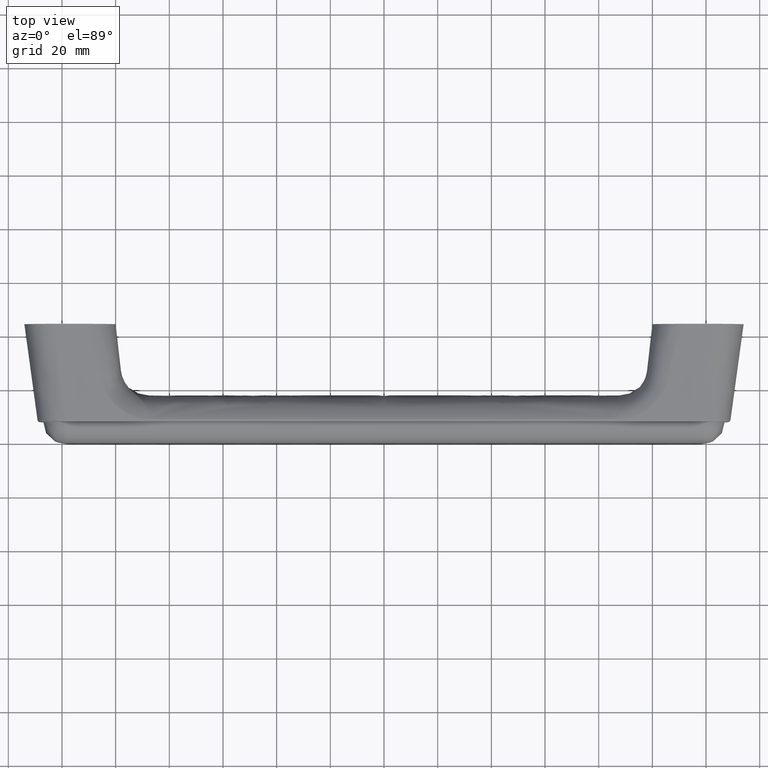
[diagram: clean part render]
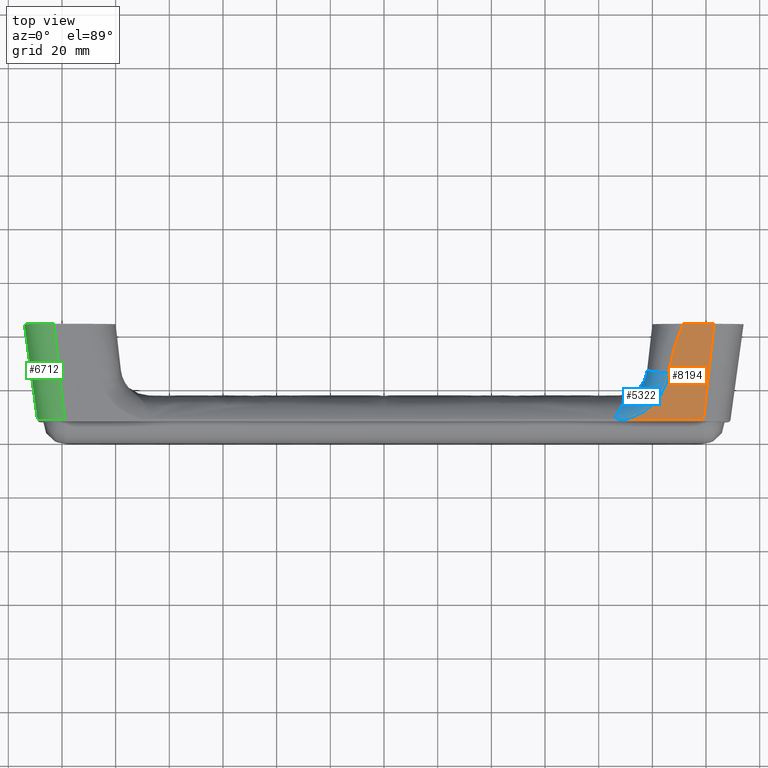
[diagram: same view with three faces highlighted in distinct colors, each labeled with its STEP entity id]
A machine part, top view with three faces highlighted in distinct colors.
Their STEP definitions:

[orange] entity #8194 — the highlighted face is a freeform B-spline surface patch.
#3193=CARTESIAN_POINT('',(90.210512625301405,10.026647000498601,-8.972613018198100));
#3194=VERTEX_POINT('',#3193);
#3295=CARTESIAN_POINT('',(119.051613881012800,10.026647000498500,-8.972613018194110));
#3296=VERTEX_POINT('',#3295);
#3310=CARTESIAN_POINT('',(90.210512625301405,10.026647000498601,-8.972613018198100));
#3311=CARTESIAN_POINT('',(119.051613881012800,10.026647000498500,-8.972613018194110));
#3312=QUASI_UNIFORM_CURVE('',1,(#3310,#3311),.UNSPECIFIED.,.F.,.U.);
#3313=EDGE_CURVE('',#3194,#3296,#3312,.T.);
#4971=CARTESIAN_POINT('',(105.986903452424400,10.494442814030361,-26.047161413613701));
#4972=VERTEX_POINT('',#4971);
#4988=CARTESIAN_POINT('',(111.434945395078000,11.0,-44.500000000000000));
#4989=VERTEX_POINT('',#4988);
#4990=CARTESIAN_POINT('',(111.434945395078000,11.000000000000050,-44.500000000000078));
#4991=CARTESIAN_POINT('',(111.277950166653300,10.988673316509679,-44.086576023509622));
#4992=CARTESIAN_POINT('',(111.120954938228710,10.977346633019311,-43.673152047019158));
#4993=CARTESIAN_POINT('',(110.963959709804000,10.966019949528940,-43.259728070528702));
#4994=CARTESIAN_POINT('',(108.806579152353000,10.810372118778121,-37.578581848351149));
#4995=CARTESIAN_POINT('',(106.649198594902200,10.654724288027300,-31.897435626173650));
#4996=CARTESIAN_POINT('',(105.986903452424400,10.494442814030400,-26.047161413613701));
#4997=B_SPLINE_CURVE_WITH_KNOTS('',3,(#4990,#4991,#4992,#4993,#4994,#4995,#4996),.UNSPECIFIED.,.F.,.U.,(4,3,4),(0.0,0.022656031355942,0.333988305889159),.UNSPECIFIED.);
#4998=EDGE_CURVE('',#4989,#4972,#4997,.T.);
#5282=CARTESIAN_POINT('',(105.986903452424400,10.494442814030361,-26.047161413613701));
#5283=CARTESIAN_POINT('',(105.928357105002900,10.480274063181980,-25.530001971256159));
#5284=CARTESIAN_POINT('',(105.848461808016590,10.466233858815620,-25.017534475822799));
#5285=CARTESIAN_POINT('',(105.646733882065500,10.438405963513381,-24.001816225816611));
#5286=CARTESIAN_POINT('',(105.524899799265500,10.424618281331330,-23.498565790759201));
#5287=CARTESIAN_POINT('',(105.310624370552300,10.404126572476590,-22.750618364929529));
#5288=CARTESIAN_POINT('',(105.233927052952890,10.397326719280169,-22.502423705795049));
#5289=CARTESIAN_POINT('',(105.069967693670310,10.383794777561119,-22.008507798293731));
#5290=CARTESIAN_POINT('',(104.983166716033300,10.377100584493260,-21.764169734123321));
#5291=CARTESIAN_POINT('',(104.708609831106300,10.357228724357469,-21.038846788127088));
#5292=CARTESIAN_POINT('',(104.506722847639400,10.344261435789839,-20.565540722102970));
#5293=CARTESIAN_POINT('',(103.846095240585700,10.306177894370901,-19.175491362496199));
#5294=CARTESIAN_POINT('',(103.332699193346500,10.281875332275900,-18.288447783609008));
#5295=CARTESIAN_POINT('',(102.599876097501290,10.252853067488960,-17.229135044343760));
#5296=CARTESIAN_POINT('',(102.448732617173310,10.247116783008750,-17.019760646082538));
#5297=CARTESIAN_POINT('',(102.215077425552810,10.238615676141769,-16.709470223603180));
#5298=CARTESIAN_POINT('',(102.136035390815910,10.235799198428740,-16.606668779843869));
#5299=CARTESIAN_POINT('',(101.975621693729490,10.230200925680601,-16.402331810157659));
#5300=CARTESIAN_POINT('',(101.894196968923200,10.227417479218641,-16.300736007147162));
#5301=CARTESIAN_POINT('',(101.483106607521800,10.213650100284481,-15.798226640689791));
#5302=CARTESIAN_POINT('',(101.140222882165400,10.203067231109550,-15.411951888623181));
#5303=CARTESIAN_POINT('',(100.071300262433700,10.172557494464540,-14.298346422717779));
#5304=CARTESIAN_POINT('',(99.305118865857054,10.153865531246611,-13.616089717254200));
#5305=CARTESIAN_POINT('',(98.079195949816196,10.128185596504039,-12.678772033192940));
#5306=CARTESIAN_POINT('',(97.657740363809410,10.120019834372650,-12.380721694423981));
#5307=CARTESIAN_POINT('',(97.006581194218441,10.108354943637201,-11.954953152619479));
#5308=CARTESIAN_POINT('',(96.786150748308472,10.104561038990729,-11.816475623278590));
#5309=CARTESIAN_POINT('',(96.342647942638621,10.097224446631490,-11.548689983323079));
#5310=CARTESIAN_POINT('',(96.119155693643592,10.093673908450681,-11.419095330603950));
#5311=CARTESIAN_POINT('',(94.993363161676299,10.076484780086540,-10.791692101163630));
#5312=CARTESIAN_POINT('',(94.066012913262284,10.064540672659950,-10.355732149415260));
#5313=CARTESIAN_POINT('',(92.167759265241571,10.043598572198400,-9.591345428780199));
#5314=CARTESIAN_POINT('',(91.196766664866090,10.034606613070549,-9.263138897518349));
#5315=CARTESIAN_POINT('',(90.210512625301334,10.026647000498601,-8.972613018198265));
#5316=B_SPLINE_CURVE_WITH_KNOTS('',3,(#5282,#5283,#5284,#5285,#5286,#5287,#5288,#5289,#5290,#5291,#5292,#5293,#5294,#5295,#5296,#5297,#5298,#5299,#5300,#5301,#5302,#5303,#5304,#5305,#5306,#5307,#5308,#5309,#5310,#5311,#5312,#5313,#5314,#5315),.UNSPECIFIED.,.F.,.U.,(4,2,2,2,2,2,2,2,2,2,2,2,2,2,2,2,4),(0.0,0.062500000000001,0.125000000000002,0.156250000000002,0.187500000000003,0.250000000000004,0.375000000000006,0.406250000000007,0.421875000000007,0.437500000000008,0.500000000000007,0.625000000000006,0.687500000000005,0.718750000000004,0.750000000000003,0.875000000000001,1.0),.UNSPECIFIED.);
#5317=EDGE_CURVE('',#4972,#3194,#5316,.T.);
#6384=CARTESIAN_POINT('',(122.977883841506200,11.0,-44.500000000000000));
#6385=VERTEX_POINT('',#6384);
#6386=CARTESIAN_POINT('',(119.051613881012800,10.026647000498510,-8.972613018194110));
#6387=CARTESIAN_POINT('',(120.360370534510690,10.351098000332341,-20.815075345462770));
#6388=CARTESIAN_POINT('',(121.669127188008400,10.675549000166180,-32.657537672731387));
#6389=CARTESIAN_POINT('',(122.977883841506100,11.000000000000011,-44.500000000000043));
#6390=B_SPLINE_CURVE_WITH_KNOTS('',3,(#6386,#6387,#6388,#6389),.UNSPECIFIED.,.F.,.U.,(4,4),(0.407825264908886,0.594879132900888),.UNSPECIFIED.);
#6391=EDGE_CURVE('',#3296,#6385,#6390,.T.);
#8178=CARTESIAN_POINT('',(88.573780152856472,11.048618980438549,-46.274592910882241));
#8179=CARTESIAN_POINT('',(88.573780152856472,9.978027993952573,-7.198019154393099));
#8180=CARTESIAN_POINT('',(124.614612505430500,11.048618980438549,-46.274592910882241));
#8181=CARTESIAN_POINT('',(124.614612505430500,9.978027993952573,-7.198019154393099));
#8182=B_SPLINE_SURFACE_WITH_KNOTS('',1,1,((#8178,#8180),(#8179,#8181)),.UNSPECIFIED.,.F.,.F.,.U.,(2,2),(2,2),(0.0,39.091236634400303),(0.0,36.040832352574000),.UNSPECIFIED.);
#8183=ORIENTED_EDGE('',*,*,#5317,.T.);
#8184=ORIENTED_EDGE('',*,*,#3313,.T.);
#8185=ORIENTED_EDGE('',*,*,#6391,.T.);
#8186=CARTESIAN_POINT('',(122.977883841506200,11.0,-44.500000000000000));
#8187=CARTESIAN_POINT('',(111.434945395078000,11.0,-44.500000000000000));
#8188=QUASI_UNIFORM_CURVE('',1,(#8186,#8187),.UNSPECIFIED.,.F.,.U.);
#8189=EDGE_CURVE('',#6385,#4989,#8188,.T.);
#8190=ORIENTED_EDGE('',*,*,#8189,.T.);
#8191=ORIENTED_EDGE('',*,*,#4998,.T.);
#8192=EDGE_LOOP('',(#8183,#8184,#8185,#8190,#8191));
#8193=FACE_OUTER_BOUND('',#8192,.T.);
#8194=ADVANCED_FACE('',(#8193),#8182,.T.);

[blue] entity #5322 — the highlighted face is a freeform B-spline surface patch.
#2864=CARTESIAN_POINT('',(85.875753955372403,9.941905924826591,-9.118448156514230));
#2865=VERTEX_POINT('',#2864);
#3193=CARTESIAN_POINT('',(90.210512625301405,10.026647000498601,-8.972613018198100));
#3194=VERTEX_POINT('',#3193);
#3208=CARTESIAN_POINT('',(85.875753955372403,9.941905924826591,-9.118448156514230));
#3209=CARTESIAN_POINT('',(86.236928646252224,9.953832834476655,-9.107801704559666));
#3210=CARTESIAN_POINT('',(86.598091130910888,9.965725496286780,-9.096734504934865));
#3211=CARTESIAN_POINT('',(87.320482249885615,9.986524956759126,-9.073961618532803));
#3212=CARTESIAN_POINT('',(87.681710662415810,9.995662819312546,-9.062245418543231));
#3213=CARTESIAN_POINT('',(88.765450280648423,10.018353851597750,-9.025977897111854));
#3214=CARTESIAN_POINT('',(89.487959472655845,10.027404845314880,-9.000274355934778));
#3215=CARTESIAN_POINT('',(90.210512625301405,10.026647000498601,-8.972613018198100));
#3216=B_SPLINE_CURVE_WITH_KNOTS('',3,(#3208,#3209,#3210,#3211,#3212,#3213,#3214,#3215),.UNSPECIFIED.,.F.,.U.,(4,2,2,4),(0.0,0.250000000000002,0.500000000000005,1.0),.UNSPECIFIED.);
#3217=EDGE_CURVE('',#2865,#3194,#3216,.T.);
#4969=CARTESIAN_POINT('',(98.037679698098700,2.497443563901395,-27.166169321356900));
#4970=VERTEX_POINT('',#4969);
#4971=CARTESIAN_POINT('',(105.986903452424400,10.494442814030361,-26.047161413613701));
#4972=VERTEX_POINT('',#4971);
#4973=CARTESIAN_POINT('',(98.037679698098700,2.497443563901395,-27.166169321356879));
#4974=CARTESIAN_POINT('',(98.027513684252156,5.817143082755584,-27.076369525410243));
#4975=CARTESIAN_POINT('',(100.357275046581710,8.160906504610543,-26.748410284587170));
#4976=CARTESIAN_POINT('',(102.687036408911310,10.504669926465501,-26.420451043764110));
#4977=CARTESIAN_POINT('',(105.986903452424400,10.494442814030361,-26.047161413613701));
#4985=(BOUNDED_CURVE()B_SPLINE_CURVE(2,(#4973,#4974,#4975,#4976,#4977),.UNSPECIFIED.,.F.,.U.)B_SPLINE_CURVE_WITH_KNOTS((3,2,3),(0.0,0.500000000000000,1.0),.UNSPECIFIED.)CURVE()GEOMETRIC_REPRESENTATION_ITEM()RATIONAL_B_SPLINE_CURVE((1.0,0.923584521557066,1.0,0.923584521557066,1.0))REPRESENTATION_ITEM(''));
#4986=EDGE_CURVE('',#4970,#4972,#4985,.T.);
#5054=CARTESIAN_POINT('',(85.940035474785404,9.997631779522264,-7.913557378038102));
#5055=CARTESIAN_POINT('',(86.239422389510537,9.999123578378276,-7.968008040102816));
#5056=CARTESIAN_POINT('',(86.536662232546234,10.000878596975213,-8.032066223409787));
#5057=CARTESIAN_POINT('',(87.130693754809784,10.004435872202743,-8.161906778351938));
#5058=CARTESIAN_POINT('',(87.427193618377473,10.006277870440837,-8.229139718772725));
#5059=CARTESIAN_POINT('',(88.315396699747879,10.011969641472600,-8.436889376052363));
#5060=CARTESIAN_POINT('',(88.906160181052940,10.015993282724798,-8.583752292090832));
#5061=CARTESIAN_POINT('',(90.078039949171455,10.024668160587376,-8.900385356356379));
#5062=CARTESIAN_POINT('',(90.659473075783467,10.029325658901071,-9.070384056768686));
#5063=CARTESIAN_POINT('',(91.810283807127504,10.039489131648310,-9.441350838146873));
#5064=CARTESIAN_POINT('',(92.379647559463294,10.044995012724520,-9.642315511569837));
#5065=CARTESIAN_POINT('',(93.503684116176260,10.057028323020406,-10.081531368277107));
#5066=CARTESIAN_POINT('',(94.058360809893259,10.063554712149791,-10.319744588261994));
#5067=CARTESIAN_POINT('',(95.150847605366366,10.077769269889478,-10.838575982270040));
#5068=CARTESIAN_POINT('',(95.688670259191070,10.085456245220005,-11.119150601578372));
#5069=CARTESIAN_POINT('',(96.745483541393114,10.102118869579993,-11.727336433513807));
#5070=CARTESIAN_POINT('',(97.266146815466243,10.111132093205658,-12.056319119000985));
#5071=CARTESIAN_POINT('',(98.267890607526212,10.130198273992955,-12.752234766707520));
#5072=CARTESIAN_POINT('',(98.751114189345401,10.140278607118269,-13.120166951672340));
#5073=CARTESIAN_POINT('',(100.146798083417180,10.172187873614227,-14.284855260731788));
#5074=CARTESIAN_POINT('',(101.005774618181770,10.195672455377167,-15.142042555398318));
#5075=CARTESIAN_POINT('',(102.178297127934040,10.234475004430898,-16.558335695521109));
#5076=CARTESIAN_POINT('',(102.546994659274630,10.247929643108298,-17.049430041803280));
#5077=CARTESIAN_POINT('',(103.230190609248170,10.275487316001101,-18.055285173172454));
#5078=CARTESIAN_POINT('',(103.546392686520630,10.289645355882188,-18.572053665195462));
#5079=CARTESIAN_POINT('',(104.128265035161310,10.318715243990882,-19.633104655826603));
#5080=CARTESIAN_POINT('',(104.393941484886210,10.333627056624778,-20.177385855264195));
#5081=CARTESIAN_POINT('',(104.873771958821790,10.364218840705053,-21.293986052767778));
#5082=CARTESIAN_POINT('',(105.088428901313960,10.379941991613915,-21.867881101324869));
#5083=CARTESIAN_POINT('',(105.648192661932460,10.428029729254176,-23.623083648705531));
#5084=CARTESIAN_POINT('',(105.904637178659090,10.460794623731221,-24.819002381269119));
#5085=CARTESIAN_POINT('',(106.048639154538650,10.495599515980317,-26.089381037758262));
#5086=CARTESIAN_POINT('',(106.054145906111200,10.496930483100439,-26.137961341061594));
#5087=CARTESIAN_POINT('',(106.059652647895120,10.498261447854629,-26.186541558008120));
#5088=CARTESIAN_POINT('',(85.939575465898415,9.997698909381104,-7.916007618058376));
#5089=CARTESIAN_POINT('',(86.238742395381351,9.999213059086980,-7.971274086206098));
#5090=CARTESIAN_POINT('',(86.535760250797551,10.000992047176247,-8.036207156039449));
#5091=CARTESIAN_POINT('',(87.129347046291883,10.004596416141165,-8.167766632516674));
#5092=CARTESIAN_POINT('',(87.425620893157486,10.006461664833806,-8.235848214588296));
#5093=CARTESIAN_POINT('',(88.313123792633135,10.012220725202548,-8.446053932839741));
#5094=CARTESIAN_POINT('',(88.903388462660615,10.016286294170756,-8.594447210621095));
#5095=CARTESIAN_POINT('',(90.074173716353343,10.025035579010655,-8.913796129749894));
#5096=CARTESIAN_POINT('',(90.655017151738676,10.029725551610541,-9.084980141691444));
#5097=CARTESIAN_POINT('',(91.804556410555648,10.039943718128866,-9.457943245854819));
#5098=CARTESIAN_POINT('',(92.373242666253347,10.045472045860645,-9.659727222264042));
#5099=CARTESIAN_POINT('',(93.495857368568352,10.057540894829380,-10.100240240621023));
#5100=CARTESIAN_POINT('',(94.049790890199830,10.064080685202777,-10.338942606047206));
#5101=CARTESIAN_POINT('',(95.140753677409009,10.078314186523826,-10.858465440823345));
#5102=CARTESIAN_POINT('',(95.677794122752644,10.086006969282277,-11.139252031265482));
#5103=CARTESIAN_POINT('',(96.733029931800985,10.102674710956563,-11.747624645186509));
#5104=CARTESIAN_POINT('',(97.252892305099238,10.111687400865453,-12.076587850009844));
#5105=CARTESIAN_POINT('',(98.253070019345529,10.130747214477459,-12.772271095802244));
#5106=CARTESIAN_POINT('',(98.735521789389239,10.140821860447604,-13.139995699588837));
#5107=CARTESIAN_POINT('',(100.128972468580490,10.172707816731085,-14.303833185832749));
#5108=CARTESIAN_POINT('',(100.986515219752360,10.196168772933627,-15.160158147483648));
#5109=CARTESIAN_POINT('',(102.157057400461600,10.234926186734407,-16.574803850758162));
#5110=CARTESIAN_POINT('',(102.525129446716520,10.248364344081546,-17.065296628443402));
#5111=CARTESIAN_POINT('',(103.207160373432970,10.275886933930995,-18.069871228639776));
#5112=CARTESIAN_POINT('',(103.522818238461300,10.290026304926815,-18.585958306302874));
#5113=CARTESIAN_POINT('',(104.103683159854140,10.319056898172089,-19.645575034318536));
#5114=CARTESIAN_POINT('',(104.368895047958960,10.333948076613209,-20.189103085666684));
#5115=CARTESIAN_POINT('',(104.847879466146950,10.364496802444160,-21.304131656958610));
#5116=CARTESIAN_POINT('',(105.062153016635920,10.380197457438424,-21.877205604575927));
#5117=CARTESIAN_POINT('',(105.620905904701090,10.428215708904300,-23.629871906412355));
#5118=CARTESIAN_POINT('',(105.876860983597060,10.460932007585939,-24.824016892320412));
#5119=CARTESIAN_POINT('',(106.020554278427710,10.495684533948602,-26.092484193819075));
#5120=CARTESIAN_POINT('',(106.026049291990590,10.497013514566184,-26.140991989774498));
#5121=CARTESIAN_POINT('',(106.031544300662290,10.498342494000834,-26.189499742552506));
#5122=CARTESIAN_POINT('',(85.847092854067981,10.011195050116742,-8.408616789572806));
#5123=CARTESIAN_POINT('',(86.101851878847214,10.017226538775642,-8.628766142258391));
#5124=CARTESIAN_POINT('',(86.353789360478714,10.023880131245370,-8.871622283368129));
#5125=CARTESIAN_POINT('',(86.856066847429574,10.037174720084106,-9.356874810089723));
#5126=CARTESIAN_POINT('',(87.105299415807082,10.043895598450032,-9.602186887770523));
#5127=CARTESIAN_POINT('',(87.844123061321866,10.064030344784372,-10.337105180560389));
#5128=CARTESIAN_POINT('',(88.324922692582476,10.077438643629339,-10.826508122951060));
#5129=CARTESIAN_POINT('',(89.246451886265021,10.103696193630379,-11.784908765379612));
#5130=CARTESIAN_POINT('',(89.687460867859841,10.116557979640193,-12.254363987785286));
#5131=CARTESIAN_POINT('',(90.524783327392171,10.141519981355644,-13.165477114537532));
#5132=CARTESIAN_POINT('',(90.921192449867036,10.153619995537003,-13.607127663248841));
#5133=CARTESIAN_POINT('',(91.671347905619697,10.177027578540180,-14.461504502933554));
#5134=CARTESIAN_POINT('',(92.025217077881479,10.188337540245167,-14.874318134258793));
#5135=CARTESIAN_POINT('',(92.695891942576949,10.210299062345111,-15.675913747277530));
#5136=CARTESIAN_POINT('',(93.012773551827735,10.220952955218634,-16.064780864477356));
#5137=CARTESIAN_POINT('',(93.615460260464616,10.241821052815075,-16.826466480477798));
#5138=CARTESIAN_POINT('',(93.902124889868716,10.252070316594805,-17.200564634692547));
#5139=CARTESIAN_POINT('',(94.439412180257193,10.272001472166195,-17.928051864248047));
#5140=CARTESIAN_POINT('',(94.691309414761406,10.281725880566306,-18.282992795809619));
#5141=CARTESIAN_POINT('',(95.404096575238498,10.310524476704954,-19.334141628883870));
#5142=CARTESIAN_POINT('',(95.822839143730391,10.329237471925897,-20.017166002464492));
#5143=CARTESIAN_POINT('',(96.379054094452513,10.357664712673277,-21.054760362782112));
#5144=CARTESIAN_POINT('',(96.550959732427557,10.367136452158354,-21.400478878422739));
#5145=CARTESIAN_POINT('',(96.864845938028793,10.385938024410317,-22.086736313677704));
#5146=CARTESIAN_POINT('',(97.007623120865318,10.395307978940698,-22.428739678187032));
#5147=CARTESIAN_POINT('',(97.265975075338559,10.414091614921972,-23.114342439812848));
#5148=CARTESIAN_POINT('',(97.381544390958993,10.423504895957826,-23.457927221772813));
#5149=CARTESIAN_POINT('',(97.585500220844423,10.442460078916765,-24.149791448447075));
#5150=CARTESIAN_POINT('',(97.674081337081361,10.452027572630955,-24.499004993611383));
#5151=CARTESIAN_POINT('',(97.896264229910400,10.480864916861334,-25.551568132037218));
#5152=CARTESIAN_POINT('',(97.984749233343052,10.499967186149270,-26.248801010564577));
#5153=CARTESIAN_POINT('',(98.014246161744694,10.519921067764159,-26.977117740320175));
#5154=CARTESIAN_POINT('',(98.015378036248109,10.520686750534118,-27.005065163373359));
#5155=CARTESIAN_POINT('',(98.016510196185052,10.521452626392225,-27.033019634144591));
#5156=CARTESIAN_POINT('',(85.755283769570951,9.962292212067499,-8.899345281910190));
#5157=CARTESIAN_POINT('',(85.965741647338589,9.930467295131413,-9.282744773917088));
#5158=CARTESIAN_POINT('',(86.175117722007769,9.873977051845369,-9.696241266647354));
#5159=CARTESIAN_POINT('',(86.594208105868447,9.713523327233345,-10.505760088079356));
#5160=CARTESIAN_POINT('',(86.802712998053678,9.610009849455729,-10.905128537886000));
#5161=CARTESIAN_POINT('',(87.422274003150775,9.242847178868452,-12.060162406613170));
#5162=CARTESIAN_POINT('',(87.827443927876331,8.922284152432475,-12.771803497116061));
#5163=CARTESIAN_POINT('',(88.612500812023640,8.224225469323212,-14.031891486860534));
#5164=CARTESIAN_POINT('',(88.992780486981388,7.848070470763177,-14.582310369568193));
#5165=CARTESIAN_POINT('',(89.729158767575754,7.115821982817997,-15.546394369543954));
#5166=CARTESIAN_POINT('',(90.085389437008260,6.759723390645947,-15.961307010881027));
#5167=CARTESIAN_POINT('',(90.777152541730459,6.102208435490185,-16.702153172796908));
#5168=CARTESIAN_POINT('',(91.112745930480841,5.800193009956347,-17.028625542936332));
#5169=CARTESIAN_POINT('',(91.766438772267577,5.255551423009669,-17.634915397179654));
#5170=CARTESIAN_POINT('',(92.084546102810123,5.012471075772772,-17.914762894749874));
#5171=CARTESIAN_POINT('',(92.705197874482977,4.578076605131225,-18.457485013665263));
#5172=CARTESIAN_POINT('',(93.008685288520354,4.386129750297196,-18.721147512595234));
#5173=CARTESIAN_POINT('',(93.590020148368822,4.049499917775796,-19.241209949089235));
#5174=CARTESIAN_POINT('',(93.869118869024348,3.903734491079958,-19.498554985167200));
#5175=CARTESIAN_POINT('',(94.673074345240394,3.516919181723188,-20.280178774052629));
#5176=CARTESIAN_POINT('',(95.164933437618785,3.325135517919416,-20.814784105433461));
#5177=CARTESIAN_POINT('',(95.835102141496606,3.092375352632948,-21.672845320002548));
#5178=CARTESIAN_POINT('',(96.045571890997309,3.024806495783184,-21.966181909725066));
#5179=CARTESIAN_POINT('',(96.435308013489532,2.905971287955342,-22.561590849497797));
#5180=CARTESIAN_POINT('',(96.615543903883051,2.854390260199032,-22.864858640746942));
#5181=CARTESIAN_POINT('',(96.947084338789196,2.762841648880675,-23.484039935236247));
#5182=CARTESIAN_POINT('',(97.098389725541097,2.722891619337488,-23.799939635865424));
#5183=CARTESIAN_POINT('',(97.371616469187444,2.651842839749708,-24.445632946143103));
#5184=CARTESIAN_POINT('',(97.493822481842088,2.620682118774742,-24.776325051623630));
#5185=CARTESIAN_POINT('',(97.812540013270791,2.538042257393449,-25.785227842829674));
#5186=CARTESIAN_POINT('',(97.958606973903684,2.497893823591696,-26.469436911469529));
#5187=CARTESIAN_POINT('',(98.040922452041883,2.465201832953953,-27.194744330359001));
#5188=CARTESIAN_POINT('',(98.044070296586824,2.463951651253981,-27.222480973012466));
#5189=CARTESIAN_POINT('',(98.047218138066071,2.462701470771571,-27.250217588653015));
#5190=CARTESIAN_POINT('',(85.754784287260776,9.962026158847841,-8.902015063472412));
#5191=CARTESIAN_POINT('',(85.965002126600425,9.929995910583799,-9.286298002466447));
#5192=CARTESIAN_POINT('',(86.174149046404125,9.873164346162611,-9.700711972229321));
#5193=CARTESIAN_POINT('',(86.592796683214118,9.711778841235843,-10.511952597441168));
#5194=CARTESIAN_POINT('',(86.801088050635727,9.607679799307512,-10.912125585823190));
#5195=CARTESIAN_POINT('',(87.420037944645571,9.238494404891810,-12.069295665750872));
#5196=CARTESIAN_POINT('',(87.824836817415544,8.916230395827068,-12.781998102955011));
#5197=CARTESIAN_POINT('',(88.609262169922900,8.214623887652062,-14.043370563302075));
#5198=CARTESIAN_POINT('',(88.989281479658686,7.836644418403544,-14.594035907903587));
#5199=CARTESIAN_POINT('',(89.725264550598823,7.101012580107164,-15.558047866511455));
#5200=CARTESIAN_POINT('',(90.081357473210915,6.743351030134663,-15.972663713065797));
#5201=CARTESIAN_POINT('',(90.772957462327057,6.083091595312025,-16.712665080445667));
#5202=CARTESIAN_POINT('',(91.108521869202590,5.779879171599209,-17.038598380469242));
#5203=CARTESIAN_POINT('',(91.762242218015245,5.233180347264019,-17.643760443887551));
#5204=CARTESIAN_POINT('',(92.080403397464892,4.989225473905089,-17.923019416848526));
#5205=CARTESIAN_POINT('',(92.701221436704898,4.553334807893362,-18.464610040264201));
#5206=CARTESIAN_POINT('',(93.004820462553909,4.360754963479956,-18.727725224375412));
#5207=CARTESIAN_POINT('',(93.586410444507806,4.023055841256000,-19.246790542774054));
#5208=CARTESIAN_POINT('',(93.865652389279930,3.876843914344097,-19.503679979281173));
#5209=CARTESIAN_POINT('',(94.670058457799968,3.488891649805039,-20.284081721770466));
#5210=CARTESIAN_POINT('',(95.162250106208688,3.296568617528711,-20.818037267230213));
#5211=CARTESIAN_POINT('',(95.832915617523199,3.063171064876639,-21.675329836455234));
#5212=CARTESIAN_POINT('',(96.043549234274693,2.995421117210697,-21.968445959125354));
#5213=CARTESIAN_POINT('',(96.433602437662657,2.876270417036292,-22.563476365004835));
#5214=CARTESIAN_POINT('',(96.613992568183477,2.824553190654383,-22.866584228042917));
#5215=CARTESIAN_POINT('',(96.945830729171433,2.732763382420606,-23.485493274210452));
#5216=CARTESIAN_POINT('',(97.097279855225793,2.692707825355948,-23.801280208606251));
#5217=CARTESIAN_POINT('',(97.370782622393548,2.621470353964790,-24.446786313252204));
#5218=CARTESIAN_POINT('',(97.493121453343207,2.590225937631264,-24.777403552115192));
#5219=CARTESIAN_POINT('',(97.812216616609632,2.507361978357057,-25.786130386602093));
#5220=CARTESIAN_POINT('',(97.958506365919263,2.467097997643810,-26.470286024504876));
#5221=CARTESIAN_POINT('',(98.041024775332758,2.434306031087161,-27.195579089189273));
#5222=CARTESIAN_POINT('',(98.044180338632685,2.433052042711350,-27.223314817408028));
#5223=CARTESIAN_POINT('',(98.047335895795911,2.431798056774147,-27.251050491689487));
#5231=(BOUNDED_SURFACE()B_SPLINE_SURFACE(3,2,((#5054,#5088,#5122,#5156,#5190),(#5055,#5089,#5123,#5157,#5191),(#5056,#5090,#5124,#5158,#5192),(#5057,#5091,#5125,#5159,#5193),(#5058,#5092,#5126,#5160,#5194),(#5059,#5093,#5127,#5161,#5195),(#5060,#5094,#5128,#5162,#5196),(#5061,#5095,#5129,#5163,#5197),(#5062,#5096,#5130,#5164,#5198),(#5063,#5097,#5131,#5165,#5199),(#5064,#5098,#5132,#5166,#5200),(#5065,#5099,#5133,#5167,#5201),(#5066,#5100,#5134,#5168,#5202),(#5067,#5101,#5135,#5169,#5203),(#5068,#5102,#5136,#5170,#5204),(#5069,#5103,#5137,#5171,#5205),(#5070,#5104,#5138,#5172,#5206),(#5071,#5105,#5139,#5173,#5207),(#5072,#5106,#5140,#5174,#5208),(#5073,#5107,#5141,#5175,#5209),(#5074,#5108,#5142,#5176,#5210),(#5075,#5109,#5143,#5177,#5211),(#5076,#5110,#5144,#5178,#5212),(#5077,#5111,#5145,#5179,#5213),(#5078,#5112,#5146,#5180,#5214),(#5079,#5113,#5147,#5181,#5215),(#5080,#5114,#5148,#5182,#5216),(#5081,#5115,#5149,#5183,#5217),(#5082,#5116,#5150,#5184,#5218),(#5083,#5117,#5151,#5185,#5219),(#5084,#5118,#5152,#5186,#5220),(#5085,#5119,#5153,#5187,#5221),(#5086,#5120,#5154,#5188,#5222),(#5087,#5121,#5155,#5189,#5223)),.UNSPECIFIED.,.F.,.F.,.U.)B_SPLINE_SURFACE_WITH_KNOTS((4,2,2,2,2,2,2,2,2,2,2,2,2,2,2,2,4),(3,1,1,3),(0.0,1.382717477018861,2.765434954037721,5.530869908075442,8.296304862113164,11.061739816150901,13.827174770188631,16.592609724226349,19.358044678264068,22.123479632301791,27.654349540377240,30.419784494414980,33.185219448452699,35.950654402490407,38.716089356528137,44.246959264603589,44.466879416413661),(0.0,0.066570884601807,13.357552246457120,13.430400221131990),.UNSPECIFIED.)GEOMETRIC_REPRESENTATION_ITEM()RATIONAL_B_SPLINE_SURFACE(((1.000019422944097,1.000009711472049,0.998061089397151,1.000010627184453,1.000021254368906),(1.000032505519048,1.000016252759524,0.996755111108944,1.000017785261850,1.000035570523699),(1.000053789382011,1.000026894691006,0.994630432823196,1.000029430640452,1.000058861280903),(1.000111105477022,1.000055552738511,0.988908808759818,1.000060790907502,1.000121581815004),(1.000147148271177,1.000073574135588,0.985310808611470,1.000080511574965,1.000161023149929),(1.000273686218301,1.000136843109150,0.972679058959580,1.000149746295388,1.000299492590776),(1.000382768240754,1.000191384120377,0.961789860656050,1.000209430077996,1.000418860155991),(1.000622947569907,1.000311473784954,0.937813771060914,1.000340843215978,1.000681686431956),(1.000753665143416,1.000376832571708,0.924764786932493,1.000412364801890,1.000824729603779),(1.001012865669638,1.000506432834819,0.898889891446201,1.000554185310081,1.001108370620162),(1.001141285266309,1.000570642633155,0.886070304654908,1.000624449567361,1.001248899134722),(1.001382990799434,1.000691495399717,0.861941860553291,1.000756697761607,1.001513395523214),(1.001496416787092,1.000748208393546,0.850619022521861,1.000818758327016,1.001637516654032),(1.001704688465416,1.000852344232708,0.829828139154660,1.000932713324301,1.001865426648602),(1.001799666766535,1.000899833383268,0.820346855876699,1.000984680313443,1.001969360626886),(1.001972293323521,1.000986146661761,0.803114274657525,1.001079132228321,1.002158264456642),(1.002050197207573,1.001025098603787,0.795337458432674,1.001121757019973,1.002243514039946),(1.002189048736409,1.001094524368205,0.781476495844715,1.001197729066287,1.002395458132573),(1.002250420223705,1.001125210111853,0.775350039070999,1.001231308224646,1.002462616449292),(1.002415906756212,1.001207953378106,0.758830216386171,1.001321853504322,1.002643707008644),(1.002501764824795,1.001250882412397,0.750259367462344,1.001368830395520,1.002737660791039),(1.002609421571724,1.001304710785862,0.739512448403987,1.001427734344452,1.002855468688903),(1.002641439904891,1.001320719952445,0.736316193225049,1.001445253044538,1.002890506089075),(1.002698970044141,1.001349485022071,0.730573202027787,1.001476730425019,1.002953460850038),(1.002724630031434,1.001362315015717,0.728011673704309,1.001490770182156,1.002981540364313),(1.002771320984081,1.001385660492041,0.723350712796893,1.001516316946003,1.003032633892006),(1.002792345616955,1.001396172808478,0.721251912357819,1.001527820487922,1.003055640975843),(1.002830868870183,1.001415434435091,0.717406298440300,1.001548898328424,1.003097796656849),(1.002848406160023,1.001424203080012,0.715655624750152,1.001558493784860,1.003116987569720),(1.002896638982523,1.001448319491261,0.710840745477447,1.001584884176493,1.003169768352985),(1.002922544414174,1.001461272207087,0.708254715478695,1.001599058227507,1.003198116455015),(1.002945854682136,1.001472927341068,0.705927749727220,1.001611812345320,1.003223624690640),(1.002946746107074,1.001473373053537,0.705838762534853,1.001612300084830,1.003224600169659),(1.002947637532011,1.001473818766006,0.705749775342486,1.001612787824340,1.003225575648679)))REPRESENTATION_ITEM('')SURFACE());
#5232=CARTESIAN_POINT('',(85.875753955372403,9.941905924826591,-9.118448156514230));
#5233=CARTESIAN_POINT('',(85.993335558022181,9.919061752359484,-9.338939400694720));
#5234=CARTESIAN_POINT('',(86.107631950034062,9.889278600330350,-9.559491593577594));
#5235=CARTESIAN_POINT('',(86.335113660283142,9.816197425205079,-9.997886509603831));
#5236=CARTESIAN_POINT('',(86.448067719710124,9.772900205916498,-10.215853126214061));
#5237=CARTESIAN_POINT('',(86.787061070229697,9.623251421031679,-10.864853101330450));
#5238=CARTESIAN_POINT('',(87.013197521098476,9.497137993459459,-11.291003620413569));
#5239=CARTESIAN_POINT('',(87.357853598489996,9.270391723632580,-11.918127881657909));
#5240=CARTESIAN_POINT('',(87.473708040025244,9.188484277223944,-12.125308760384531));
#5241=CARTESIAN_POINT('',(87.707624327904512,9.012774408695949,-12.534738822795051));
#5242=CARTESIAN_POINT('',(87.824790345769884,8.919656095337146,-12.735422808791570));
#5243=CARTESIAN_POINT('',(88.178020564313314,8.626012134224949,-13.325549220650830));
#5244=CARTESIAN_POINT('',(88.415809971480002,8.411150982112785,-13.703037895769871));
#5245=CARTESIAN_POINT('',(88.901896589006057,7.951861092707744,-14.427516076440460));
#5246=CARTESIAN_POINT('',(89.150201804662942,7.707386153899225,-14.774465000339690));
#5247=CARTESIAN_POINT('',(89.663327478267433,7.199454922902310,-15.440567877122440));
#5248=CARTESIAN_POINT('',(89.928195635848454,6.935975573583796,-15.759664824937481));
#5249=CARTESIAN_POINT('',(90.479818010185710,6.403825437972234,-16.375650497584559));
#5250=CARTESIAN_POINT('',(90.766667143413017,6.135204993024094,-16.672496286891569));
#5251=CARTESIAN_POINT('',(91.364845248067127,5.609573358236484,-17.254107549164079));
#5252=CARTESIAN_POINT('',(91.676269139471728,5.352720668423290,-17.538909326578210));
#5253=CARTESIAN_POINT('',(92.159290039891175,4.988696200728443,-17.968325979504709));
#5254=CARTESIAN_POINT('',(92.322887578527713,4.870878951685098,-18.111868417966310));
#5255=CARTESIAN_POINT('',(92.654129322831338,4.643889035587405,-18.401883811955852));
#5256=CARTESIAN_POINT('',(92.821999512897875,4.534582618879359,-18.548564601805030));
#5257=CARTESIAN_POINT('',(93.327422607547533,4.222445764274621,-18.994495074280209));
#5258=CARTESIAN_POINT('',(93.666507525151474,4.035747930502506,-19.299535299440290));
#5259=CARTESIAN_POINT('',(94.334560360184057,3.704932948038191,-19.939026162602769));
#5260=CARTESIAN_POINT('',(94.663458835986162,3.560645177083431,-20.273465946467010));
#5261=CARTESIAN_POINT('',(95.139225251253478,3.371286792279461,-20.804671153815889));
#5262=CARTESIAN_POINT('',(95.294900403876554,3.312650534859597,-20.986634366725621));
#5263=CARTESIAN_POINT('',(95.522945267111382,3.230708724774343,-21.267661682207830));
#5264=CARTESIAN_POINT('',(95.598049795669510,3.204396591743061,-21.362683541311100));
#5265=CARTESIAN_POINT('',(95.746263793553069,3.153656978882381,-21.555534245338709));
#5266=CARTESIAN_POINT('',(95.819309256813327,3.129253393670959,-21.653291428017681));
#5267=CARTESIAN_POINT('',(96.176688806726915,3.012421347774705,-22.145852992306789));
#5268=CARTESIAN_POINT('',(96.439423290482907,2.934734766635764,-22.554576631292239));
#5269=CARTESIAN_POINT('',(96.913552431702684,2.801680722207187,-23.402618407656760));
#5270=CARTESIAN_POINT('',(97.125024470642785,2.746334136500237,-23.841898718294068));
#5271=CARTESIAN_POINT('',(97.400229104622369,2.675284537945303,-24.524893863349298));
#5272=CARTESIAN_POINT('',(97.484957760508024,2.653616430350821,-24.756577399369501));
#5273=CARTESIAN_POINT('',(97.639647763496853,2.613717803497488,-25.228291334230580));
#5274=CARTESIAN_POINT('',(97.708864283637837,2.595677344227782,-25.466055095949059));
#5275=CARTESIAN_POINT('',(97.892065507454575,2.546300978043855,-26.184974715566970));
#5276=CARTESIAN_POINT('',(97.981707953231890,2.519659223793100,-26.671752203331600));
#5277=CARTESIAN_POINT('',(98.037679698098700,2.497443563901395,-27.166169321356900));
#5278=B_SPLINE_CURVE_WITH_KNOTS('',3,(#5232,#5233,#5234,#5235,#5236,#5237,#5238,#5239,#5240,#5241,#5242,#5243,#5244,#5245,#5246,#5247,#5248,#5249,#5250,#5251,#5252,#5253,#5254,#5255,#5256,#5257,#5258,#5259,#5260,#5261,#5262,#5263,#5264,#5265,#5266,#5267,#5268,#5269,#5270,#5271,#5272,#5273,#5274,#5275,#5276,#5277),.UNSPECIFIED.,.F.,.U.,(4,2,2,2,2,2,2,2,2,2,2,2,2,2,2,2,2,2,2,2,2,2,4),(0.0,0.031250000000000,0.062500000000000,0.125000000000001,0.156250000000001,0.187500000000001,0.250000000000001,0.312500000000001,0.375000000000001,0.437500000000001,0.500000000000002,0.531250000000001,0.562500000000001,0.624999999999999,0.687499999999997,0.718749999999996,0.734374999999996,0.749999999999995,0.812499999999997,0.874999999999998,0.906249999999998,0.937499999999999,1.0),.UNSPECIFIED.);
#5279=EDGE_CURVE('',#2865,#4970,#5278,.T.);
#5280=ORIENTED_EDGE('',*,*,#5279,.F.);
#5281=ORIENTED_EDGE('',*,*,#3217,.T.);
#5282=CARTESIAN_POINT('',(105.986903452424400,10.494442814030361,-26.047161413613701));
#5283=CARTESIAN_POINT('',(105.928357105002900,10.480274063181980,-25.530001971256159));
#5284=CARTESIAN_POINT('',(105.848461808016590,10.466233858815620,-25.017534475822799));
#5285=CARTESIAN_POINT('',(105.646733882065500,10.438405963513381,-24.001816225816611));
#5286=CARTESIAN_POINT('',(105.524899799265500,10.424618281331330,-23.498565790759201));
#5287=CARTESIAN_POINT('',(105.310624370552300,10.404126572476590,-22.750618364929529));
#5288=CARTESIAN_POINT('',(105.233927052952890,10.397326719280169,-22.502423705795049));
#5289=CARTESIAN_POINT('',(105.069967693670310,10.383794777561119,-22.008507798293731));
#5290=CARTESIAN_POINT('',(104.983166716033300,10.377100584493260,-21.764169734123321));
#5291=CARTESIAN_POINT('',(104.708609831106300,10.357228724357469,-21.038846788127088));
#5292=CARTESIAN_POINT('',(104.506722847639400,10.344261435789839,-20.565540722102970));
#5293=CARTESIAN_POINT('',(103.846095240585700,10.306177894370901,-19.175491362496199));
#5294=CARTESIAN_POINT('',(103.332699193346500,10.281875332275900,-18.288447783609008));
#5295=CARTESIAN_POINT('',(102.599876097501290,10.252853067488960,-17.229135044343760));
#5296=CARTESIAN_POINT('',(102.448732617173310,10.247116783008750,-17.019760646082538));
#5297=CARTESIAN_POINT('',(102.215077425552810,10.238615676141769,-16.709470223603180));
#5298=CARTESIAN_POINT('',(102.136035390815910,10.235799198428740,-16.606668779843869));
#5299=CARTESIAN_POINT('',(101.975621693729490,10.230200925680601,-16.402331810157659));
#5300=CARTESIAN_POINT('',(101.894196968923200,10.227417479218641,-16.300736007147162));
#5301=CARTESIAN_POINT('',(101.483106607521800,10.213650100284481,-15.798226640689791));
#5302=CARTESIAN_POINT('',(101.140222882165400,10.203067231109550,-15.411951888623181));
#5303=CARTESIAN_POINT('',(100.071300262433700,10.172557494464540,-14.298346422717779));
#5304=CARTESIAN_POINT('',(99.305118865857054,10.153865531246611,-13.616089717254200));
#5305=CARTESIAN_POINT('',(98.079195949816196,10.128185596504039,-12.678772033192940));
#5306=CARTESIAN_POINT('',(97.657740363809410,10.120019834372650,-12.380721694423981));
#5307=CARTESIAN_POINT('',(97.006581194218441,10.108354943637201,-11.954953152619479));
#5308=CARTESIAN_POINT('',(96.786150748308472,10.104561038990729,-11.816475623278590));
#5309=CARTESIAN_POINT('',(96.342647942638621,10.097224446631490,-11.548689983323079));
#5310=CARTESIAN_POINT('',(96.119155693643592,10.093673908450681,-11.419095330603950));
#5311=CARTESIAN_POINT('',(94.993363161676299,10.076484780086540,-10.791692101163630));
#5312=CARTESIAN_POINT('',(94.066012913262284,10.064540672659950,-10.355732149415260));
#5313=CARTESIAN_POINT('',(92.167759265241571,10.043598572198400,-9.591345428780199));
#5314=CARTESIAN_POINT('',(91.196766664866090,10.034606613070549,-9.263138897518349));
#5315=CARTESIAN_POINT('',(90.210512625301334,10.026647000498601,-8.972613018198265));
#5316=B_SPLINE_CURVE_WITH_KNOTS('',3,(#5282,#5283,#5284,#5285,#5286,#5287,#5288,#5289,#5290,#5291,#5292,#5293,#5294,#5295,#5296,#5297,#5298,#5299,#5300,#5301,#5302,#5303,#5304,#5305,#5306,#5307,#5308,#5309,#5310,#5311,#5312,#5313,#5314,#5315),.UNSPECIFIED.,.F.,.U.,(4,2,2,2,2,2,2,2,2,2,2,2,2,2,2,2,4),(0.0,0.062500000000001,0.125000000000002,0.156250000000002,0.187500000000003,0.250000000000004,0.375000000000006,0.406250000000007,0.421875000000007,0.437500000000008,0.500000000000007,0.625000000000006,0.687500000000005,0.718750000000004,0.750000000000003,0.875000000000001,1.0),.UNSPECIFIED.);
#5317=EDGE_CURVE('',#4972,#3194,#5316,.T.);
#5318=ORIENTED_EDGE('',*,*,#5317,.F.);
#5319=ORIENTED_EDGE('',*,*,#4986,.F.);
#5320=EDGE_LOOP('',(#5280,#5281,#5318,#5319));
#5321=FACE_OUTER_BOUND('',#5320,.T.);
#5322=ADVANCED_FACE('',(#5321),#5231,.T.);

[green] entity #6712 — the highlighted face is a freeform B-spline surface patch.
#1993=CARTESIAN_POINT('',(-129.118395025761000,0.005863998665292,-8.864281188054619));
#1994=VERTEX_POINT('',#1993);
#2237=CARTESIAN_POINT('',(-119.051613881012800,10.026647000498500,-8.972613018194089));
#2238=VERTEX_POINT('',#2237);
#2252=CARTESIAN_POINT('',(-129.118395025761000,0.005863998665292,-8.864281188054578));
#2253=CARTESIAN_POINT('',(-129.118394725463300,0.026468426184364,-8.864278995881490));
#2254=CARTESIAN_POINT('',(-129.118329776206910,0.047307921325599,-8.864277495472784));
#2255=CARTESIAN_POINT('',(-129.118070836007010,0.088731151801604,-8.864275906319662));
#2256=CARTESIAN_POINT('',(-129.117488859402100,0.150844965861392,-8.864275624685762));
#2257=CARTESIAN_POINT('',(-129.114778479926510,0.295630251989590,-8.864289654317703));
#2258=CARTESIAN_POINT('',(-129.103966115097990,0.584615007466355,-8.864376260605614));
#2259=CARTESIAN_POINT('',(-129.085510425756100,0.831317923862085,-8.864550255235162));
#2260=CARTESIAN_POINT('',(-129.036412776873900,1.323399675940946,-8.865030537502273));
#2261=CARTESIAN_POINT('',(-128.987462663156890,1.649691997338689,-8.865526788417247));
#2262=CARTESIAN_POINT('',(-128.889426058897500,2.136456361484041,-8.866538287418861));
#2263=CARTESIAN_POINT('',(-128.852603337324810,2.298303080225601,-8.866920425559524));
#2264=CARTESIAN_POINT('',(-128.771448465129310,2.618130418103975,-8.867766527538420));
#2265=CARTESIAN_POINT('',(-128.727047142325690,2.776490090103015,-8.868231201308113));
#2266=CARTESIAN_POINT('',(-128.582567698876010,3.246986843306025,-8.869747959816541));
#2267=CARTESIAN_POINT('',(-128.359913507708600,3.862118019003475,-8.872097022274737));
#2268=CARTESIAN_POINT('',(-128.077978737409500,4.453158041243366,-8.875091523768717));
#2269=CARTESIAN_POINT('',(-127.843931998271400,4.887255361244009,-8.877583538269217));
#2270=CARTESIAN_POINT('',(-127.762143768002300,5.030421292795451,-8.878455306493166));
#2271=CARTESIAN_POINT('',(-127.633692715861700,5.242825833596644,-8.879825819926632));
#2272=CARTESIAN_POINT('',(-127.589872475644300,5.313296331835506,-8.880293581354936));
#2273=CARTESIAN_POINT('',(-127.500780409284600,5.452687970729022,-8.881245031884060));
#2274=CARTESIAN_POINT('',(-127.455458229835000,5.521695954245972,-8.881729257836120));
#2275=CARTESIAN_POINT('',(-127.225009476630400,5.863334689090597,-8.884192431676839));
#2276=CARTESIAN_POINT('',(-127.028397893327810,6.125787201157878,-8.886297197131915));
#2277=CARTESIAN_POINT('',(-126.611294465950100,6.629529070072058,-8.890768628049973));
#2278=CARTESIAN_POINT('',(-126.390801306685700,6.870817261375670,-8.893135307577280));
#2279=CARTESIAN_POINT('',(-125.925859163132200,7.332163518977350,-8.898131738596598));
#2280=CARTESIAN_POINT('',(-125.681412229002600,7.552223402172001,-8.900761467055599));
#2281=CARTESIAN_POINT('',(-125.360395258405500,7.813598800661459,-8.904218626447376));
#2282=CARTESIAN_POINT('',(-125.295441073886200,7.865163178035921,-8.904918321150747));
#2283=CARTESIAN_POINT('',(-125.164709877734200,7.966345491804741,-8.906326928982926));
#2284=CARTESIAN_POINT('',(-124.967113012021800,8.115417286291502,-8.908456530981788));
#2285=CARTESIAN_POINT('',(-124.765067019684390,8.256476062526065,-8.910635663414370));
#2286=CARTESIAN_POINT('',(-124.355136066395800,8.528077445781118,-8.915059004807239));
#2287=CARTESIAN_POINT('',(-123.793017925837300,8.862218217667156,-8.921130030816917));
#2288=CARTESIAN_POINT('',(-123.200118429628010,9.140920768776548,-8.927544882393443));
#2289=CARTESIAN_POINT('',(-122.743681224833400,9.328762883703524,-8.932487676947350));
#2290=CARTESIAN_POINT('',(-122.589571577359490,9.387839850901559,-8.934157256509160));
#2291=CARTESIAN_POINT('',(-122.277343261775400,9.498773406409885,-8.937541328536982));
#2292=CARTESIAN_POINT('',(-122.120170999982900,9.550283974255880,-8.939245565225582));
#2293=CARTESIAN_POINT('',(-121.647119354256300,9.692647526432063,-8.944377115730061));
#2294=CARTESIAN_POINT('',(-121.329029640398500,9.771604084812037,-8.947830587985472));
#2295=CARTESIAN_POINT('',(-120.687526746769900,9.898318059655164,-8.954801212144238));
#2296=CARTESIAN_POINT('',(-120.364113361768010,9.946074273340221,-8.958318366238267));
#2297=CARTESIAN_POINT('',(-119.874975102292100,9.994159298678280,-8.963642282835957));
#2298=CARTESIAN_POINT('',(-119.711258141289600,10.006255856924071,-8.965424966076260));
#2299=CARTESIAN_POINT('',(-119.464662241929700,10.018420112652990,-8.968111236130284));
#2300=CARTESIAN_POINT('',(-119.341109059984600,10.023006404716790,-8.969457433806335));
#2301=CARTESIAN_POINT('',(-119.196512639530000,10.025713666635189,-8.971033411282681));
#2302=CARTESIAN_POINT('',(-119.134445537118690,10.026304216699261,-8.971709997006460));
#2303=CARTESIAN_POINT('',(-119.093045802745490,10.026570938563509,-8.972161314226621));
#2304=CARTESIAN_POINT('',(-119.072217083231190,10.026640846245220,-8.972388387933400));
#2305=CARTESIAN_POINT('',(-119.051613881012800,10.026647000498500,-8.972613018194050));
#2306=B_SPLINE_CURVE_WITH_KNOTS('',3,(#2252,#2253,#2254,#2255,#2256,#2257,#2258,#2259,#2260,#2261,#2262,#2263,#2264,#2265,#2266,#2267,#2268,#2269,#2270,#2271,#2272,#2273,#2274,#2275,#2276,#2277,#2278,#2279,#2280,#2281,#2282,#2283,#2284,#2285,#2286,#2287,#2288,#2289,#2290,#2291,#2292,#2293,#2294,#2295,#2296,#2297,#2298,#2299,#2300,#2301,#2302,#2303,#2304,#2305),.UNSPECIFIED.,.F.,.U.,(4,2,1,1,1,2,2,2,2,1,2,2,2,2,2,2,2,2,1,2,1,2,2,2,2,2,2,1,1,2,4),(0.0,0.003906250000000,0.007812499999999,0.015624999999999,0.031249999999998,0.062499999999995,0.124999999999990,0.156249999999988,0.187499999999985,0.249999999999980,0.312499999999975,0.343749999999972,0.359374999999969,0.374999999999967,0.437499999999962,0.499999999999958,0.562499999999953,0.578124999999953,0.593749999999953,0.624999999999955,0.687499999999959,0.749999999999962,0.781249999999965,0.812499999999969,0.874999999999977,0.937499999999986,0.968749999999990,0.984374999999994,0.992187499999997,0.996093749999998,1.0),.UNSPECIFIED.);
#2307=EDGE_CURVE('',#1994,#2238,#2306,.T.);
#6626=CARTESIAN_POINT('',(-123.138110053679300,11.039721329859340,-45.949828641887393));
#6627=CARTESIAN_POINT('',(-133.995026765785210,10.999005353157276,-44.463695387684830));
#6628=CARTESIAN_POINT('',(-134.035381150384010,0.044806142806763,-44.758282415922778));
#6629=CARTESIAN_POINT('',(-121.767820415926390,10.700015822465980,-33.550576749515727));
#6630=CARTESIAN_POINT('',(-132.302540786607100,10.660508157394077,-32.108546872917699));
#6631=CARTESIAN_POINT('',(-132.341697590398890,0.031392301959686,-32.394391560650767));
#6632=CARTESIAN_POINT('',(-120.397530778173500,10.360310315072621,-21.151324857144090));
#6633=CARTESIAN_POINT('',(-130.610054807429010,10.322010961630879,-19.753398358150474));
#6634=CARTESIAN_POINT('',(-130.648014030413690,0.017978461112608,-20.030500705378760));
#6635=CARTESIAN_POINT('',(-119.027241140420300,10.020604807679261,-8.752072964772427));
#6636=CARTESIAN_POINT('',(-128.917568828250950,9.983513765867677,-7.398249843383258));
#6637=CARTESIAN_POINT('',(-128.954330470428600,0.004564620265531,-7.666609850106755));
#6645=(BOUNDED_SURFACE()B_SPLINE_SURFACE(2,3,((#6626,#6629,#6632,#6635),(#6627,#6630,#6633,#6636),(#6628,#6631,#6634,#6637)),.UNSPECIFIED.,.F.,.F.,.U.)B_SPLINE_SURFACE_WITH_KNOTS((3,3),(4,4),(0.0,18.175928887321469),(0.0,37.438093823298807),.UNSPECIFIED.)GEOMETRIC_REPRESENTATION_ITEM()RATIONAL_B_SPLINE_SURFACE(((1.0,1.0,1.0,1.0),(0.708419695037308,0.708419695037308,0.708419695037308,0.708419695037308),(1.0,1.0,1.0,1.0)))REPRESENTATION_ITEM('')SURFACE());
#6646=CARTESIAN_POINT('',(-134.0,0.044525926872985,-44.500000000000000));
#6647=VERTEX_POINT('',#6646);
#6648=CARTESIAN_POINT('',(-129.118395025760890,0.005863998665292,-8.864281188054660));
#6649=CARTESIAN_POINT('',(-130.745596683840600,0.018751308067866,-20.742854125369760));
#6650=CARTESIAN_POINT('',(-132.372798341920290,0.031638617470439,-32.621427062684887));
#6651=CARTESIAN_POINT('',(-134.0,0.044525926873013,-44.500000000000007));
#6652=B_SPLINE_CURVE_WITH_KNOTS('',3,(#6648,#6649,#6650,#6651),.UNSPECIFIED.,.F.,.U.,(4,4),(0.401555590334443,0.589716442070142),.UNSPECIFIED.);
#6653=EDGE_CURVE('',#1994,#6647,#6652,.T.);
#6654=ORIENTED_EDGE('',*,*,#6653,.F.);
#6655=ORIENTED_EDGE('',*,*,#2307,.T.);
#6656=CARTESIAN_POINT('',(-122.977883841506200,11.0,-44.500000000000000));
#6657=VERTEX_POINT('',#6656);
#6658=CARTESIAN_POINT('',(-122.977883841506100,11.000000000000011,-44.500000000000043));
#6659=CARTESIAN_POINT('',(-121.669127188008400,10.675549000166180,-32.657537672731380));
#6660=CARTESIAN_POINT('',(-120.360370534510690,10.351098000332341,-20.815075345462748));
#6661=CARTESIAN_POINT('',(-119.051613881012800,10.026647000498510,-8.972613018194087));
#6662=B_SPLINE_CURVE_WITH_KNOTS('',3,(#6658,#6659,#6660,#6661),.UNSPECIFIED.,.F.,.U.,(4,4),(0.407825264908886,0.594879132900888),.UNSPECIFIED.);
#6663=EDGE_CURVE('',#6657,#2238,#6662,.T.);
#6664=ORIENTED_EDGE('',*,*,#6663,.F.);
#6665=CARTESIAN_POINT('',(-134.0,0.044525926873013,-44.500000000000000));
#6666=CARTESIAN_POINT('',(-134.0,0.407634860553373,-44.499999999999993));
#6667=CARTESIAN_POINT('',(-133.981876834654510,0.767111211305797,-44.500000000000071));
#6668=CARTESIAN_POINT('',(-133.910973492277410,1.479117307921076,-44.500000000000071));
#6669=CARTESIAN_POINT('',(-133.805402948875700,2.184174757309768,-44.500000000000043));
#6670=CARTESIAN_POINT('',(-133.631548011598000,2.875545374474412,-44.500000000000000));
#6671=CARTESIAN_POINT('',(-133.423090433619900,3.559980284797382,-44.500000000000021));
#6672=CARTESIAN_POINT('',(-133.301565133823690,3.898730850556407,-44.499999999999993));
#6673=CARTESIAN_POINT('',(-133.022407038287010,4.568994644068252,-44.499999999999979));
#6674=CARTESIAN_POINT('',(-132.867252473296990,4.894528217817723,-44.500000000000043));
#6675=CARTESIAN_POINT('',(-132.527160026595910,5.526540305231726,-44.500000000000050));
#6676=CARTESIAN_POINT('',(-132.342179330500500,5.833111708426024,-44.499999999999993));
#6677=CARTESIAN_POINT('',(-131.942579387941210,6.427530782626675,-44.499999999999979));
#6678=CARTESIAN_POINT('',(-131.727961106037210,6.715379062979910,-44.499999999999993));
#6679=CARTESIAN_POINT('',(-131.440768735993000,7.063237277522017,-44.499999999999993));
#6680=CARTESIAN_POINT('',(-131.382382101564590,7.132209933585672,-44.500000000000007));
#6681=CARTESIAN_POINT('',(-131.263693597655990,7.268945323239171,-44.500000000000007));
#6682=CARTESIAN_POINT('',(-131.203305342055100,7.336801091232259,-44.499999999999979));
#6683=CARTESIAN_POINT('',(-131.020024669375490,7.537674762701273,-44.499999999999979));
#6684=CARTESIAN_POINT('',(-130.895009760077810,7.668034846460600,-44.500000000000021));
#6685=CARTESIAN_POINT('',(-130.511657516273000,8.048669142561494,-44.500000000000028));
#6686=CARTESIAN_POINT('',(-129.978407839762010,8.528375983886791,-44.500000000000092));
#6687=CARTESIAN_POINT('',(-129.401791958565610,8.953553717455710,-44.500000000000043));
#6688=CARTESIAN_POINT('',(-128.952919107799400,9.251801734581919,-44.500000000000043));
#6689=CARTESIAN_POINT('',(-128.800554833123810,9.347772447572309,-44.500000000000000));
#6690=CARTESIAN_POINT('',(-128.567834483168810,9.486480164949633,-44.500000000000000));
#6691=CARTESIAN_POINT('',(-128.489565050811000,9.531840935413154,-44.499999999999972));
#6692=CARTESIAN_POINT('',(-128.331619492275190,9.620793685193606,-44.499999999999957));
#6693=CARTESIAN_POINT('',(-128.251932670577700,9.664386839803665,-44.499999999999993));
#6694=CARTESIAN_POINT('',(-127.852187416199100,9.876725540755368,-44.500000000000000));
#6695=CARTESIAN_POINT('',(-127.526460041630800,10.029636102835511,-44.499999999999979));
#6696=CARTESIAN_POINT('',(-126.863511909934200,10.302591482899230,-44.499999999999993));
#6697=CARTESIAN_POINT('',(-126.526290198281000,10.422633571384511,-44.499999999999979));
#6698=CARTESIAN_POINT('',(-125.840381701746790,10.629932955821870,-44.499999999999993));
#6699=CARTESIAN_POINT('',(-125.491695567884090,10.717192113384611,-44.499999999999957));
#6700=CARTESIAN_POINT('',(-124.959840489080610,10.822842931598711,-44.499999999999972));
#6701=CARTESIAN_POINT('',(-124.780743337357800,10.853885141621070,-44.499999999999993));
#6702=CARTESIAN_POINT('',(-124.422189467330200,10.906984305013880,-44.500000000000000));
#6703=CARTESIAN_POINT('',(-124.242537580276700,10.929097663962541,-44.500000000000007));
#6704=CARTESIAN_POINT('',(-123.702463520374100,10.982205472650170,-44.500000000000007));
#6705=CARTESIAN_POINT('',(-123.340925682666300,11.0,-44.499999999999993));
#6706=CARTESIAN_POINT('',(-122.977883841506200,11.0,-44.500000000000000));
#6707=B_SPLINE_CURVE_WITH_KNOTS('',3,(#6665,#6666,#6667,#6668,#6669,#6670,#6671,#6672,#6673,#6674,#6675,#6676,#6677,#6678,#6679,#6680,#6681,#6682,#6683,#6684,#6685,#6686,#6687,#6688,#6689,#6690,#6691,#6692,#6693,#6694,#6695,#6696,#6697,#6698,#6699,#6700,#6701,#6702,#6703,#6704,#6705,#6706),.UNSPECIFIED.,.F.,.U.,(4,2,1,2,2,2,2,2,2,2,2,1,2,2,2,2,2,2,2,2,2,4),(0.0,0.062500000000003,0.125000000000006,0.187500000000009,0.250000000000012,0.312500000000015,0.375000000000017,0.437500000000020,0.453125000000020,0.468750000000020,0.500000000000020,0.562500000000023,0.625000000000026,0.656250000000028,0.671875000000027,0.687500000000025,0.750000000000020,0.812500000000015,0.875000000000010,0.906250000000008,0.937500000000005,1.0),.UNSPECIFIED.);
#6708=EDGE_CURVE('',#6647,#6657,#6707,.T.);
#6709=ORIENTED_EDGE('',*,*,#6708,.F.);
#6710=EDGE_LOOP('',(#6654,#6655,#6664,#6709));
#6711=FACE_OUTER_BOUND('',#6710,.T.);
#6712=ADVANCED_FACE('',(#6711),#6645,.T.);